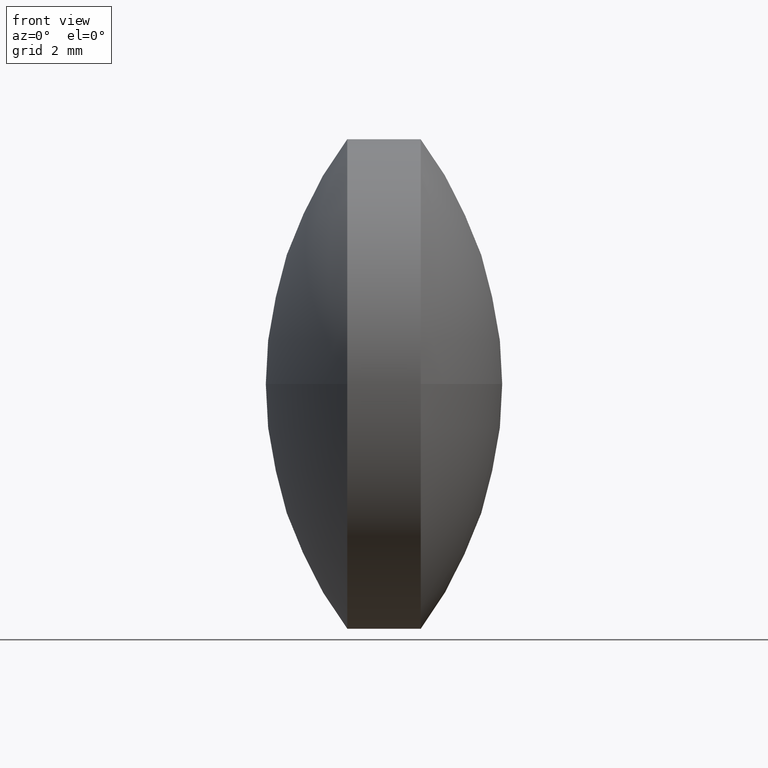
[diagram: clean part render]
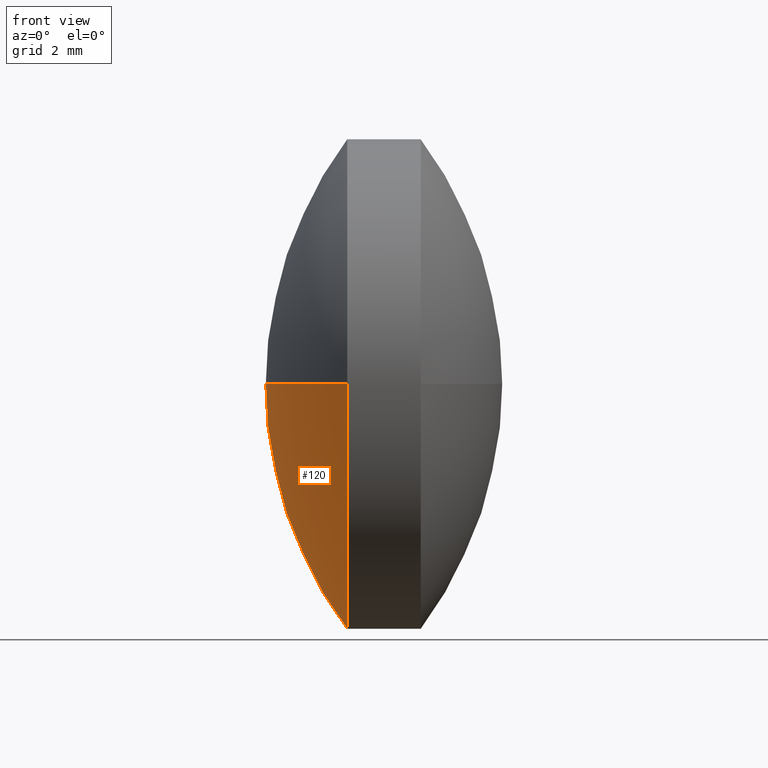
[diagram: same view with one face highlighted and labeled with its STEP entity id]
A machine part, front view. The second image highlights one B-rep face of the part: STEP entity #120.
In plain terms, the highlighted spherical surface has radius 8.34 mm.
Its self-contained STEP definition (entity closure, byte-faithful):
#12 = DIRECTION ( 'NONE',  ( 0.0000000000000000000, 0.0000000000000000000, 1.000000000000000000 ) ) ;
#18 = CARTESIAN_POINT ( 'NONE',  ( 33.28865896640257200, 19.14020197763180800, 0.0000000000000000000 ) ) ;
#24 = DIRECTION ( 'NONE',  ( 0.0000000000000000000, 0.0000000000000000000, 1.000000000000000000 ) ) ;
#37 = DIRECTION ( 'NONE',  ( 0.0000000000000000000, 1.000000000000000000, 0.0000000000000000000 ) ) ;
#39 = EDGE_CURVE ( 'NONE', #313, #106, #89, .T. ) ;
#51 = DIRECTION ( 'NONE',  ( -1.000000000000000000, -0.0000000000000000000, -0.0000000000000000000 ) ) ;
#52 = EDGE_CURVE ( 'NONE', #313, #228, #273, .T. ) ;
#66 = FACE_OUTER_BOUND ( 'NONE', #270, .T. ) ;
#68 = AXIS2_PLACEMENT_3D ( 'NONE', #314, #51, #24 ) ;
#72 = VERTEX_POINT ( 'NONE', #344 ) ;
#75 = DIRECTION ( 'NONE',  ( -0.0000000000000000000, 0.0000000000000000000, 1.000000000000000000 ) ) ;
#89 = CIRCLE ( 'NONE', #68, 4.999999999999997300 ) ;
#93 = AXIS2_PLACEMENT_3D ( 'NONE', #242, #75, #262 ) ;
#106 = VERTEX_POINT ( 'NONE', #224 ) ;
#115 = AXIS2_PLACEMENT_3D ( 'NONE', #151, #326, #235 ) ;
#120 = ADVANCED_FACE ( 'NONE', ( #66 ), #212, .T. ) ;
#143 = CIRCLE ( 'NONE', #265, 4.999999999999997300 ) ;
#151 = CARTESIAN_POINT ( 'NONE',  ( 39.96366647391008800, 19.14020197763180400, 0.0000000000000000000 ) ) ;
#153 = CARTESIAN_POINT ( 'NONE',  ( 31.62365896640257600, 19.14020197763180400, 0.0000000000000000000 ) ) ;
#164 = CIRCLE ( 'NONE', #115, 8.340007507507511500 ) ;
#167 = ORIENTED_EDGE ( 'NONE', *, *, #52, .F. ) ;
#177 = CARTESIAN_POINT ( 'NONE',  ( 39.96366647391008800, 19.14020197763180400, 0.0000000000000000000 ) ) ;
#178 = ORIENTED_EDGE ( 'NONE', *, *, #39, .T. ) ;
#183 = DIRECTION ( 'NONE',  ( -1.000000000000000000, -0.0000000000000000000, -0.0000000000000000000 ) ) ;
#212 = SPHERICAL_SURFACE ( 'NONE', #323, 8.340007507507511500 ) ;
#223 = CARTESIAN_POINT ( 'NONE',  ( 33.28865896640257200, 24.14020197763180400, 0.0000000000000000000 ) ) ;
#224 = CARTESIAN_POINT ( 'NONE',  ( 33.28865896640257200, 19.14020197763180800, -4.999999999999997300 ) ) ;
#228 = VERTEX_POINT ( 'NONE', #153 ) ;
#235 = DIRECTION ( 'NONE',  ( 0.0000000000000000000, 1.000000000000000000, 1.224646799147353200E-016 ) ) ;
#240 = ORIENTED_EDGE ( 'NONE', *, *, #246, .T. ) ;
#242 = CARTESIAN_POINT ( 'NONE',  ( 39.96366647391008800, 19.14020197763180400, 0.0000000000000000000 ) ) ;
#246 = EDGE_CURVE ( 'NONE', #106, #72, #143, .T. ) ;
#262 = DIRECTION ( 'NONE',  ( 1.000000000000000000, 0.0000000000000000000, 0.0000000000000000000 ) ) ;
#265 = AXIS2_PLACEMENT_3D ( 'NONE', #18, #183, #12 ) ;
#268 = DIRECTION ( 'NONE',  ( -0.0000000000000000000, 0.0000000000000000000, -1.000000000000000000 ) ) ;
#270 = EDGE_LOOP ( 'NONE', ( #178, #240, #298, #167 ) ) ;
#273 = CIRCLE ( 'NONE', #93, 8.340007507507511500 ) ;
#286 = EDGE_CURVE ( 'NONE', #72, #228, #164, .T. ) ;
#298 = ORIENTED_EDGE ( 'NONE', *, *, #286, .T. ) ;
#313 = VERTEX_POINT ( 'NONE', #223 ) ;
#314 = CARTESIAN_POINT ( 'NONE',  ( 33.28865896640257200, 19.14020197763180800, 0.0000000000000000000 ) ) ;
#323 = AXIS2_PLACEMENT_3D ( 'NONE', #177, #268, #37 ) ;
#326 = DIRECTION ( 'NONE',  ( 0.0000000000000000000, 1.224646799147353200E-016, -1.000000000000000000 ) ) ;
#344 = CARTESIAN_POINT ( 'NONE',  ( 33.28865896640257200, 14.14020197763180800, -6.123233995736764300E-016 ) ) ;